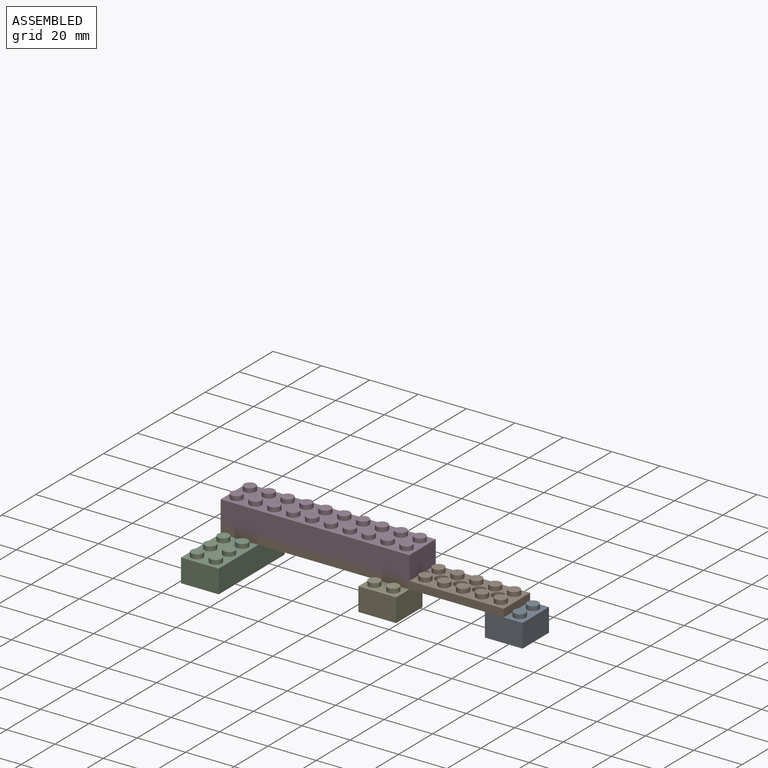
[diagram: assembled view]
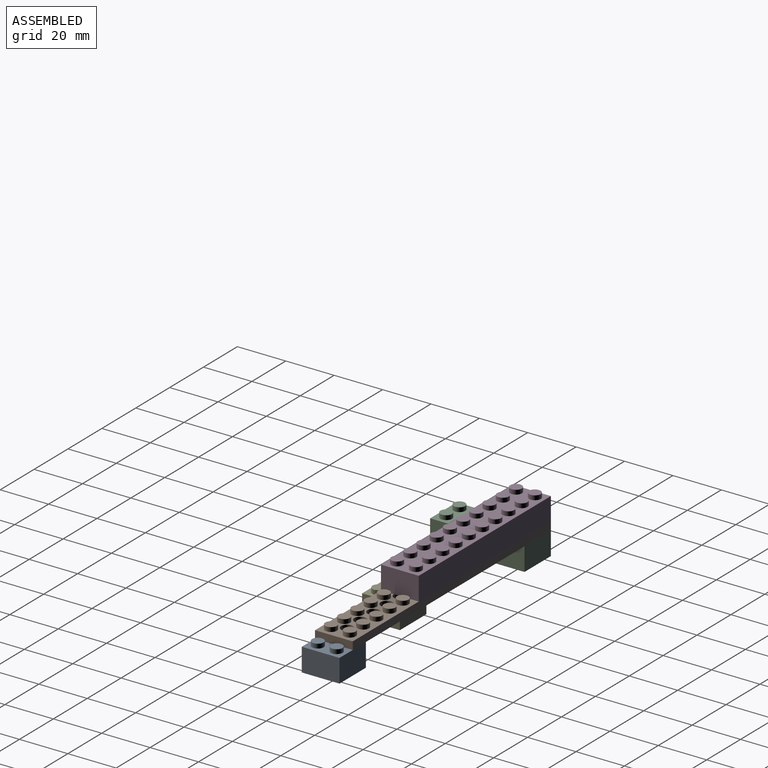
[diagram: assembled view, second angle]
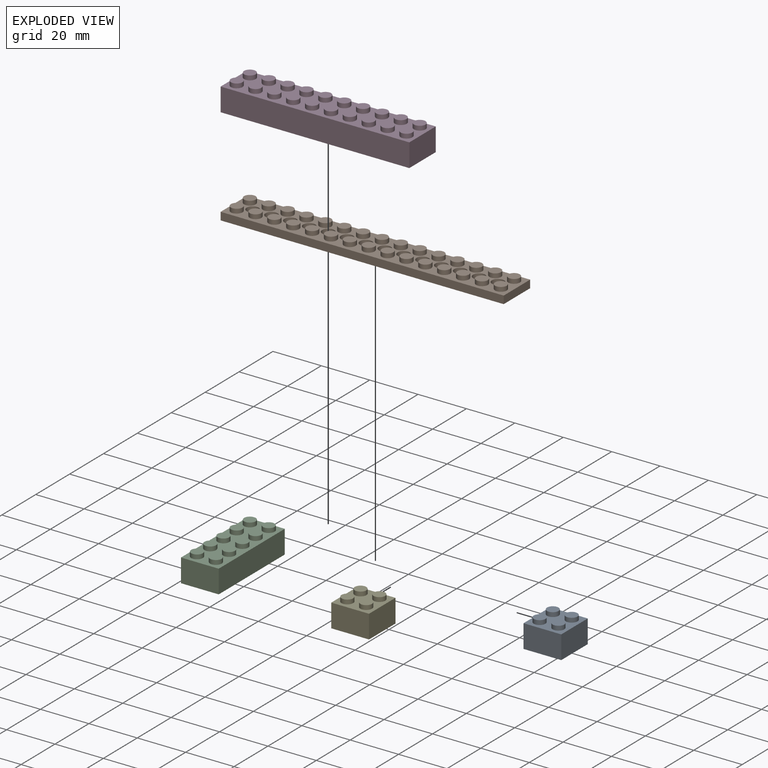
[diagram: exploded view]
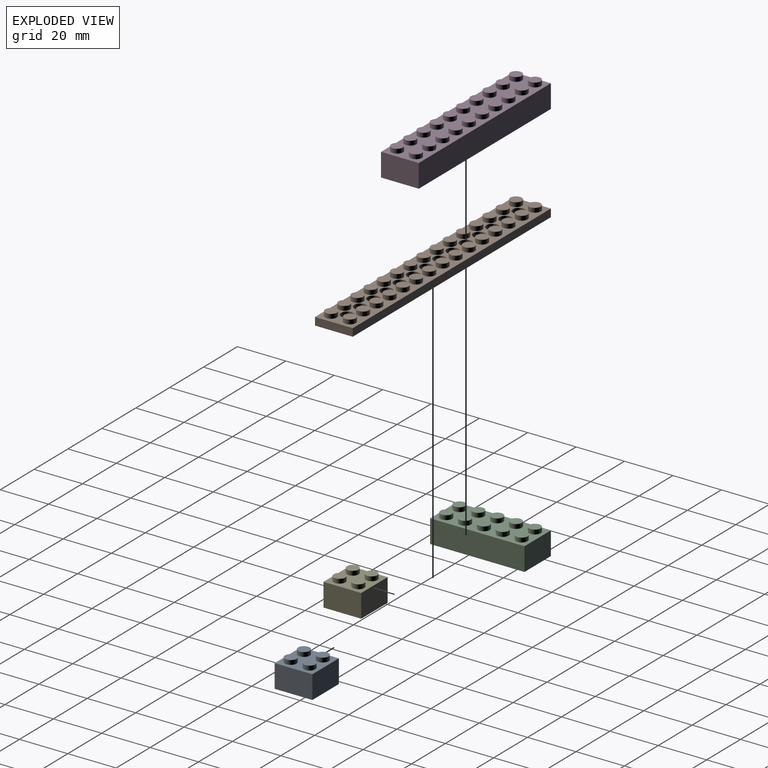
[diagram: exploded view, second angle]
ASSEMBLY  parts=5 mates=4
PART A: 31 faces, bbox 15.6x15.6x11.4 mm
  f0: cylinder r=1.4mm len=2.8mm, axis (0,0,1), area 7.9mm2, adj f14,f24
  f1: cylinder r=1.4mm len=2.8mm, axis (0,0,1), area 7.9mm2, adj f14,f21
  f2: cylinder r=1.4mm len=2.8mm, axis (0,0,1), area 7.9mm2, adj f14,f18
  f3: cylinder r=1.4mm len=2.8mm, axis (0,0,1), area 7.9mm2, adj f14,f15
  f4: plane 15.6x15.6mm, normal (0,0,-1), area 79.5mm2, adj f5,f6,f7,f8,f10,f11,f12,f13
  f5: plane 15.6x9.6mm, normal (0,1,0), area 149.8mm2, adj f4,f6,f8,f9
  f6: plane 15.6x9.6mm, normal (-1,0,0), area 149.8mm2, adj f4,f5,f7,f9
  f7: plane 15.6x9.6mm, normal (0,-1,0), area 149.8mm2, adj f4,f6,f8,f9
  f8: plane 15.6x9.6mm, normal (1,0,0), area 149.8mm2, adj f4,f5,f7,f9
  f9: plane 15.6x15.6mm, normal (0,0,1), area 171mm2, adj f5,f6,f7,f8,f16,f19,f22,f25
  f10: plane 12.8x8.2mm, normal (0,-1,0), area 105mm2, adj f4,f11,f13,f14
  f11: plane 12.8x8.2mm, normal (1,0,0), area 105mm2, adj f4,f10,f12,f14
  f12: plane 12.8x8.2mm, normal (0,1,0), area 105mm2, adj f4,f11,f13,f14
  f13: plane 12.8x8.2mm, normal (-1,0,0), area 105mm2, adj f4,f10,f12,f14
  f14: plane 12.8x12.8mm, normal (0,0,-1), area 110.9mm2, adj f0,f1,f2,f3,f10,f11,f12,f13
  f15: plane 2.8x2.8mm, normal (0,0,-1), area 6.2mm2, adj f3
  f16: cylinder r=2.4mm len=4.8mm, axis (0,0,-1), area 27.1mm2, adj f9,f17
  f17: plane 4.8x4.8mm, normal (0,0,1), area 18.1mm2, adj f16
  f18: plane 2.8x2.8mm, normal (0,0,-1), area 6.2mm2, adj f2
  f19: cylinder r=2.4mm len=4.8mm, axis (0,0,-1), area 27.1mm2, adj f9,f20
  f20: plane 4.8x4.8mm, normal (0,0,1), area 18.1mm2, adj f19
  f21: plane 2.8x2.8mm, normal (0,0,-1), area 6.2mm2, adj f1
  f22: cylinder r=2.4mm len=4.8mm, axis (0,0,-1), area 27.1mm2, adj f9,f23
  f23: plane 4.8x4.8mm, normal (0,0,1), area 18.1mm2, adj f22
  f24: plane 2.8x2.8mm, normal (0,0,-1), area 6.2mm2, adj f0
  f25: cylinder r=2.4mm len=4.8mm, axis (0,0,-1), area 27.1mm2, adj f9,f26
  f26: plane 4.8x4.8mm, normal (0,0,1), area 18.1mm2, adj f25
  f27: cylinder r=2.5mm len=8.2mm, axis (0,0,1), area 128.8mm2, adj f29,f30
  f28: cylinder r=3mm len=8.2mm, axis (0,0,1), area 154.6mm2, adj f14,f29
  f29: plane 6x6mm, normal (0,0,-1), area 8.6mm2, adj f27,f28
  f30: plane 5x5mm, normal (0,0,-1), area 19.6mm2, adj f27
PART B: 173 faces, bbox 117x15.6x5 mm
  f0: cylinder r=1.4mm len=2.8mm, axis (0,0,1), area 7.9mm2, adj f40,f128
  f1: cylinder r=1.4mm len=2.8mm, axis (0,0,1), area 7.9mm2, adj f40,f125
  f2: cylinder r=1.4mm len=2.8mm, axis (0,0,1), area 7.9mm2, adj f40,f122
  f3: cylinder r=1.4mm len=2.8mm, axis (0,0,1), area 7.9mm2, adj f40,f119
  f4: cylinder r=1.4mm len=2.8mm, axis (0,0,1), area 7.9mm2, adj f40,f116
  f5: cylinder r=1.4mm len=2.8mm, axis (0,0,1), area 7.9mm2, adj f40,f113
  f6: cylinder r=1.4mm len=2.8mm, axis (0,0,1), area 7.9mm2, adj f40,f110
  f7: cylinder r=1.4mm len=2.8mm, axis (0,0,1), area 7.9mm2, adj f40,f107
  f8: cylinder r=1.4mm len=2.8mm, axis (0,0,1), area 7.9mm2, adj f40,f104
  f9: cylinder r=1.4mm len=2.8mm, axis (0,0,1), area 7.9mm2, adj f40,f101
  f10: cylinder r=1.4mm len=2.8mm, axis (0,0,1), area 7.9mm2, adj f40,f98
  f11: cylinder r=1.4mm len=2.8mm, axis (0,0,1), area 7.9mm2, adj f40,f95
  f12: cylinder r=1.4mm len=2.8mm, axis (0,0,1), area 7.9mm2, adj f40,f92
  f13: cylinder r=1.4mm len=2.8mm, axis (0,0,1), area 7.9mm2, adj f40,f89
  f14: cylinder r=1.4mm len=2.8mm, axis (0,0,1), area 7.9mm2, adj f40,f86
  f15: cylinder r=1.4mm len=2.8mm, axis (0,0,1), area 7.9mm2, adj f40,f83
  f16: cylinder r=1.4mm len=2.8mm, axis (0,0,1), area 7.9mm2, adj f40,f80
  f17: cylinder r=1.4mm len=2.8mm, axis (0,0,1), area 7.9mm2, adj f40,f77
  f18: cylinder r=1.4mm len=2.8mm, axis (0,0,1), area 7.9mm2, adj f40,f74
  f19: cylinder r=1.4mm len=2.8mm, axis (0,0,1), area 7.9mm2, adj f40,f71
  f20: cylinder r=1.4mm len=2.8mm, axis (0,0,1), area 7.9mm2, adj f40,f68
  f21: cylinder r=1.4mm len=2.8mm, axis (0,0,1), area 7.9mm2, adj f40,f65
  f22: cylinder r=1.4mm len=2.8mm, axis (0,0,1), area 7.9mm2, adj f40,f62
  f23: cylinder r=1.4mm len=2.8mm, axis (0,0,1), area 7.9mm2, adj f40,f59
  f24: cylinder r=1.4mm len=2.8mm, axis (0,0,1), area 7.9mm2, adj f40,f56
  f25: cylinder r=1.4mm len=2.8mm, axis (0,0,1), area 7.9mm2, adj f40,f53
  f26: cylinder r=1.4mm len=2.8mm, axis (0,0,1), area 7.9mm2, adj f40,f50
  f27: cylinder r=1.4mm len=2.8mm, axis (0,0,1), area 7.9mm2, adj f40,f47
  f28: cylinder r=1.4mm len=2.8mm, axis (0,0,1), area 7.9mm2, adj f40,f44
  f29: cylinder r=1.4mm len=2.8mm, axis (0,0,1), area 7.9mm2, adj f40,f41
  f30: plane 117x15.6mm, normal (0,0,-1), area 363.4mm2, adj f31,f32,f33,f34,f36,f37,f38,f39
  f31: plane 117x3.2mm, normal (0,1,0), area 374.4mm2, adj f30,f32,f34,f35
  f32: plane 15.6x3.2mm, normal (-1,0,0), area 49.9mm2, adj f30,f31,f33,f35
  f33: plane 117x3.2mm, normal (0,-1,0), area 374.4mm2, adj f30,f32,f34,f35
  f34: plane 15.6x3.2mm, normal (1,0,0), area 49.9mm2, adj f30,f31,f33,f35
  f35: plane 117x15.6mm, normal (0,0,1), area 1007.4mm2, adj f31,f32,f33,f34,f42,f45,f48,f51
  f36: plane 114.2x1.8mm, normal (0,-1,0), area 205.6mm2, adj f30,f37,f39,f40
  f37: plane 12.8x1.8mm, normal (1,0,0), area 23mm2, adj f30,f36,f38,f40
  f38: plane 114.2x1.8mm, normal (0,1,0), area 205.6mm2, adj f30,f37,f39,f40
  f39: plane 12.8x1.8mm, normal (-1,0,0), area 23mm2, adj f30,f36,f38,f40
  f40: plane 114.2x12.8mm, normal (0,0,-1), area 881.2mm2, adj f0,f1,f2,f3,f4,f5,f6,f7
  f41: plane 2.8x2.8mm, normal (0,0,-1), area 6.2mm2, adj f29
  f42: cylinder r=2.4mm len=4.8mm, axis (0,0,-1), area 27.1mm2, adj f35,f43
  f43: plane 4.8x4.8mm, normal (0,0,1), area 18.1mm2, adj f42
  f44: plane 2.8x2.8mm, normal (0,0,-1), area 6.2mm2, adj f28
  f45: cylinder r=2.4mm len=4.8mm, axis (0,0,-1), area 27.1mm2, adj f35,f46
  f46: plane 4.8x4.8mm, normal (0,0,1), area 18.1mm2, adj f45
  f47: plane 2.8x2.8mm, normal (0,0,-1), area 6.2mm2, adj f27
  f48: cylinder r=2.4mm len=4.8mm, axis (0,0,-1), area 27.1mm2, adj f35,f49
  f49: plane 4.8x4.8mm, normal (0,0,1), area 18.1mm2, adj f48
  f50: plane 2.8x2.8mm, normal (0,0,-1), area 6.2mm2, adj f26
  f51: cylinder r=2.4mm len=4.8mm, axis (0,0,-1), area 27.1mm2, adj f35,f52
  f52: plane 4.8x4.8mm, normal (0,0,1), area 18.1mm2, adj f51
  f53: plane 2.8x2.8mm, normal (0,0,-1), area 6.2mm2, adj f25
  f54: cylinder r=2.4mm len=4.8mm, axis (0,0,-1), area 27.1mm2, adj f35,f55
  f55: plane 4.8x4.8mm, normal (0,0,1), area 18.1mm2, adj f54
  f56: plane 2.8x2.8mm, normal (0,0,-1), area 6.2mm2, adj f24
  f57: cylinder r=2.4mm len=4.8mm, axis (0,0,-1), area 27.1mm2, adj f35,f58
  f58: plane 4.8x4.8mm, normal (0,0,1), area 18.1mm2, adj f57
  f59: plane 2.8x2.8mm, normal (0,0,-1), area 6.2mm2, adj f23
  f60: cylinder r=2.4mm len=4.8mm, axis (0,0,-1), area 27.1mm2, adj f35,f61
  f61: plane 4.8x4.8mm, normal (0,0,1), area 18.1mm2, adj f60
  f62: plane 2.8x2.8mm, normal (0,0,-1), area 6.2mm2, adj f22
  f63: cylinder r=2.4mm len=4.8mm, axis (0,0,-1), area 27.1mm2, adj f35,f64
  f64: plane 4.8x4.8mm, normal (0,0,1), area 18.1mm2, adj f63
  f65: plane 2.8x2.8mm, normal (0,0,-1), area 6.2mm2, adj f21
  f66: cylinder r=2.4mm len=4.8mm, axis (0,0,-1), area 27.1mm2, adj f35,f67
  f67: plane 4.8x4.8mm, normal (0,0,1), area 18.1mm2, adj f66
  f68: plane 2.8x2.8mm, normal (0,0,-1), area 6.2mm2, adj f20
  f69: cylinder r=2.4mm len=4.8mm, axis (0,0,-1), area 27.1mm2, adj f35,f70
  f70: plane 4.8x4.8mm, normal (0,0,1), area 18.1mm2, adj f69
  f71: plane 2.8x2.8mm, normal (0,0,-1), area 6.2mm2, adj f19
  f72: cylinder r=2.4mm len=4.8mm, axis (0,0,-1), area 27.1mm2, adj f35,f73
  f73: plane 4.8x4.8mm, normal (0,0,1), area 18.1mm2, adj f72
  f74: plane 2.8x2.8mm, normal (0,0,-1), area 6.2mm2, adj f18
  f75: cylinder r=2.4mm len=4.8mm, axis (0,0,-1), area 27.1mm2, adj f35,f76
  f76: plane 4.8x4.8mm, normal (0,0,1), area 18.1mm2, adj f75
  f77: plane 2.8x2.8mm, normal (0,0,-1), area 6.2mm2, adj f17
  f78: cylinder r=2.4mm len=4.8mm, axis (0,0,-1), area 27.1mm2, adj f35,f79
  f79: plane 4.8x4.8mm, normal (0,0,1), area 18.1mm2, adj f78
  f80: plane 2.8x2.8mm, normal (0,0,-1), area 6.2mm2, adj f16
  f81: cylinder r=2.4mm len=4.8mm, axis (0,0,-1), area 27.1mm2, adj f35,f82
  f82: plane 4.8x4.8mm, normal (0,0,1), area 18.1mm2, adj f81
  f83: plane 2.8x2.8mm, normal (0,0,-1), area 6.2mm2, adj f15
  f84: cylinder r=2.4mm len=4.8mm, axis (0,0,-1), area 27.1mm2, adj f35,f85
  f85: plane 4.8x4.8mm, normal (0,0,1), area 18.1mm2, adj f84
  f86: plane 2.8x2.8mm, normal (0,0,-1), area 6.2mm2, adj f14
  f87: cylinder r=2.4mm len=4.8mm, axis (0,0,-1), area 27.1mm2, adj f35,f88
  f88: plane 4.8x4.8mm, normal (0,0,1), area 18.1mm2, adj f87
  f89: plane 2.8x2.8mm, normal (0,0,-1), area 6.2mm2, adj f13
  f90: cylinder r=2.4mm len=4.8mm, axis (0,0,-1), area 27.1mm2, adj f35,f91
  f91: plane 4.8x4.8mm, normal (0,0,1), area 18.1mm2, adj f90
  f92: plane 2.8x2.8mm, normal (0,0,-1), area 6.2mm2, adj f12
  f93: cylinder r=2.4mm len=4.8mm, axis (0,0,-1), area 27.1mm2, adj f35,f94
  f94: plane 4.8x4.8mm, normal (0,0,1), area 18.1mm2, adj f93
  f95: plane 2.8x2.8mm, normal (0,0,-1), area 6.2mm2, adj f11
  f96: cylinder r=2.4mm len=4.8mm, axis (0,0,-1), area 27.1mm2, adj f35,f97
  f97: plane 4.8x4.8mm, normal (0,0,1), area 18.1mm2, adj f96
  f98: plane 2.8x2.8mm, normal (0,0,-1), area 6.2mm2, adj f10
  f99: cylinder r=2.4mm len=4.8mm, axis (0,0,-1), area 27.1mm2, adj f35,f100
  f100: plane 4.8x4.8mm, normal (0,0,1), area 18.1mm2, adj f99
  f101: plane 2.8x2.8mm, normal (0,0,-1), area 6.2mm2, adj f9
  f102: cylinder r=2.4mm len=4.8mm, axis (0,0,-1), area 27.1mm2, adj f35,f103
  f103: plane 4.8x4.8mm, normal (0,0,1), area 18.1mm2, adj f102
  f104: plane 2.8x2.8mm, normal (0,0,-1), area 6.2mm2, adj f8
  f105: cylinder r=2.4mm len=4.8mm, axis (0,0,-1), area 27.1mm2, adj f35,f106
  f106: plane 4.8x4.8mm, normal (0,0,1), area 18.1mm2, adj f105
  f107: plane 2.8x2.8mm, normal (0,0,-1), area 6.2mm2, adj f7
  f108: cylinder r=2.4mm len=4.8mm, axis (0,0,-1), area 27.1mm2, adj f35,f109
  f109: plane 4.8x4.8mm, normal (0,0,1), area 18.1mm2, adj f108
  f110: plane 2.8x2.8mm, normal (0,0,-1), area 6.2mm2, adj f6
  f111: cylinder r=2.4mm len=4.8mm, axis (0,0,-1), area 27.1mm2, adj f35,f112
  f112: plane 4.8x4.8mm, normal (0,0,1), area 18.1mm2, adj f111
  f113: plane 2.8x2.8mm, normal (0,0,-1), area 6.2mm2, adj f5
  f114: cylinder r=2.4mm len=4.8mm, axis (0,0,-1), area 27.1mm2, adj f35,f115
  f115: plane 4.8x4.8mm, normal (0,0,1), area 18.1mm2, adj f114
  f116: plane 2.8x2.8mm, normal (0,0,-1), area 6.2mm2, adj f4
  f117: cylinder r=2.4mm len=4.8mm, axis (0,0,-1), area 27.1mm2, adj f35,f118
  f118: plane 4.8x4.8mm, normal (0,0,1), area 18.1mm2, adj f117
  f119: plane 2.8x2.8mm, normal (0,0,-1), area 6.2mm2, adj f3
  f120: cylinder r=2.4mm len=4.8mm, axis (0,0,-1), area 27.1mm2, adj f35,f121
  f121: plane 4.8x4.8mm, normal (0,0,1), area 18.1mm2, adj f120
  f122: plane 2.8x2.8mm, normal (0,0,-1), area 6.2mm2, adj f2
  f123: cylinder r=2.4mm len=4.8mm, axis (0,0,-1), area 27.1mm2, adj f35,f124
  f124: plane 4.8x4.8mm, normal (0,0,1), area 18.1mm2, adj f123
  f125: plane 2.8x2.8mm, normal (0,0,-1), area 6.2mm2, adj f1
  f126: cylinder r=2.4mm len=4.8mm, axis (0,0,-1), area 27.1mm2, adj f35,f127
  f127: plane 4.8x4.8mm, normal (0,0,1), area 18.1mm2, adj f126
  f128: plane 2.8x2.8mm, normal (0,0,-1), area 6.2mm2, adj f0
  f129: cylinder r=2.4mm len=4.8mm, axis (0,0,-1), area 27.1mm2, adj f35,f130
  f130: plane 4.8x4.8mm, normal (0,0,1), area 18.1mm2, adj f129
  f131: cylinder r=2.5mm len=5mm, axis (0,0,1), area 50.3mm2, adj f35,f133
  f132: cylinder r=3mm len=6mm, axis (0,0,1), area 33.9mm2, adj f40,f133
  f133: plane 6x6mm, normal (0,0,-1), area 8.6mm2, adj f131,f132
  f134: cylinder r=2.5mm len=5mm, axis (0,0,1), area 50.3mm2, adj f35,f136
  f135: cylinder r=3mm len=6mm, axis (0,0,1), area 33.9mm2, adj f40,f136
  f136: plane 6x6mm, normal (0,0,-1), area 8.6mm2, adj f134,f135
  f137: cylinder r=2.5mm len=5mm, axis (0,0,1), area 50.3mm2, adj f35,f139
  f138: cylinder r=3mm len=6mm, axis (0,0,1), area 33.9mm2, adj f40,f139
  f139: plane 6x6mm, normal (0,0,-1), area 8.6mm2, adj f137,f138
  f140: cylinder r=2.5mm len=5mm, axis (0,0,1), area 50.3mm2, adj f35,f142
  f141: cylinder r=3mm len=6mm, axis (0,0,1), area 33.9mm2, adj f40,f142
  f142: plane 6x6mm, normal (0,0,-1), area 8.6mm2, adj f140,f141
  f143: cylinder r=2.5mm len=5mm, axis (0,0,1), area 50.3mm2, adj f35,f145
  f144: cylinder r=3mm len=6mm, axis (0,0,1), area 33.9mm2, adj f40,f145
  f145: plane 6x6mm, normal (0,0,-1), area 8.6mm2, adj f143,f144
  f146: cylinder r=2.5mm len=5mm, axis (0,0,1), area 50.3mm2, adj f35,f148
  f147: cylinder r=3mm len=6mm, axis (0,0,1), area 33.9mm2, adj f40,f148
  f148: plane 6x6mm, normal (0,0,-1), area 8.6mm2, adj f146,f147
  f149: cylinder r=2.5mm len=5mm, axis (0,0,1), area 50.3mm2, adj f35,f151
  f150: cylinder r=3mm len=6mm, axis (0,0,1), area 33.9mm2, adj f40,f151
  f151: plane 6x6mm, normal (0,0,-1), area 8.6mm2, adj f149,f150
  f152: cylinder r=2.5mm len=5mm, axis (0,0,1), area 50.3mm2, adj f35,f154
  f153: cylinder r=3mm len=6mm, axis (0,0,1), area 33.9mm2, adj f40,f154
  f154: plane 6x6mm, normal (0,0,-1), area 8.6mm2, adj f152,f153
  f155: cylinder r=2.5mm len=5mm, axis (0,0,1), area 50.3mm2, adj f35,f157
  f156: cylinder r=3mm len=6mm, axis (0,0,1), area 33.9mm2, adj f40,f157
  f157: plane 6x6mm, normal (0,0,-1), area 8.6mm2, adj f155,f156
  f158: cylinder r=2.5mm len=5mm, axis (0,0,1), area 50.3mm2, adj f35,f160
  f159: cylinder r=3mm len=6mm, axis (0,0,1), area 33.9mm2, adj f40,f160
  f160: plane 6x6mm, normal (0,0,-1), area 8.6mm2, adj f158,f159
  f161: cylinder r=2.5mm len=5mm, axis (0,0,1), area 50.3mm2, adj f35,f163
  f162: cylinder r=3mm len=6mm, axis (0,0,1), area 33.9mm2, adj f40,f163
  f163: plane 6x6mm, normal (0,0,-1), area 8.6mm2, adj f161,f162
  f164: cylinder r=2.5mm len=5mm, axis (0,0,1), area 50.3mm2, adj f35,f166
  f165: cylinder r=3mm len=6mm, axis (0,0,1), area 33.9mm2, adj f40,f166
  f166: plane 6x6mm, normal (0,0,-1), area 8.6mm2, adj f164,f165
  f167: cylinder r=2.5mm len=5mm, axis (0,0,1), area 50.3mm2, adj f35,f169
  f168: cylinder r=3mm len=6mm, axis (0,0,1), area 33.9mm2, adj f40,f169
  f169: plane 6x6mm, normal (0,0,-1), area 8.6mm2, adj f167,f168
  f170: cylinder r=2.5mm len=5mm, axis (0,0,1), area 50.3mm2, adj f35,f172
  f171: cylinder r=3mm len=6mm, axis (0,0,1), area 33.9mm2, adj f40,f172
  f172: plane 6x6mm, normal (0,0,-1), area 8.6mm2, adj f170,f171
PART C: 67 faces, bbox 15.6x39x11.4 mm
  f0: cylinder r=1.4mm len=2.8mm, axis (0,0,1), area 7.9mm2, adj f20,f48
  f1: cylinder r=1.4mm len=2.8mm, axis (0,0,1), area 7.9mm2, adj f20,f45
  f2: cylinder r=1.4mm len=2.8mm, axis (0,0,1), area 7.9mm2, adj f20,f42
  f3: cylinder r=1.4mm len=2.8mm, axis (0,0,1), area 7.9mm2, adj f20,f39
  f4: cylinder r=1.4mm len=2.8mm, axis (0,0,1), area 7.9mm2, adj f20,f36
  f5: cylinder r=1.4mm len=2.8mm, axis (0,0,1), area 7.9mm2, adj f20,f33
  f6: cylinder r=1.4mm len=2.8mm, axis (0,0,1), area 7.9mm2, adj f20,f30
  f7: cylinder r=1.4mm len=2.8mm, axis (0,0,1), area 7.9mm2, adj f20,f27
  f8: cylinder r=1.4mm len=2.8mm, axis (0,0,1), area 7.9mm2, adj f20,f24
  f9: cylinder r=1.4mm len=2.8mm, axis (0,0,1), area 7.9mm2, adj f20,f21
  f10: plane 39x15.6mm, normal (0,0,-1), area 145mm2, adj f11,f12,f13,f14,f16,f17,f18,f19
  f11: plane 15.6x9.6mm, normal (0,1,0), area 149.8mm2, adj f10,f12,f14,f15
  f12: plane 39x9.6mm, normal (-1,0,0), area 374.4mm2, adj f10,f11,f13,f15
  f13: plane 15.6x9.6mm, normal (0,-1,0), area 149.8mm2, adj f10,f12,f14,f15
  f14: plane 39x9.6mm, normal (1,0,0), area 374.4mm2, adj f10,f11,f13,f15
  f15: plane 39x15.6mm, normal (0,0,1), area 427.4mm2, adj f11,f12,f13,f14,f22,f25,f28,f31
  f16: plane 12.8x8.2mm, normal (0,-1,0), area 105mm2, adj f10,f17,f19,f20
  f17: plane 36.2x8.2mm, normal (1,0,0), area 296.8mm2, adj f10,f16,f18,f20
  f18: plane 12.8x8.2mm, normal (0,1,0), area 105mm2, adj f10,f17,f19,f20
  f19: plane 36.2x8.2mm, normal (-1,0,0), area 296.8mm2, adj f10,f16,f18,f20
  f20: plane 36.2x12.8mm, normal (0,0,-1), area 288.7mm2, adj f0,f1,f2,f3,f4,f5,f6,f7
  f21: plane 2.8x2.8mm, normal (0,0,-1), area 6.2mm2, adj f9
  f22: cylinder r=2.4mm len=4.8mm, axis (0,0,-1), area 27.1mm2, adj f15,f23
  f23: plane 4.8x4.8mm, normal (0,0,1), area 18.1mm2, adj f22
  f24: plane 2.8x2.8mm, normal (0,0,-1), area 6.2mm2, adj f8
  f25: cylinder r=2.4mm len=4.8mm, axis (0,0,-1), area 27.1mm2, adj f15,f26
  f26: plane 4.8x4.8mm, normal (0,0,1), area 18.1mm2, adj f25
  f27: plane 2.8x2.8mm, normal (0,0,-1), area 6.2mm2, adj f7
  f28: cylinder r=2.4mm len=4.8mm, axis (0,0,-1), area 27.1mm2, adj f15,f29
  f29: plane 4.8x4.8mm, normal (0,0,1), area 18.1mm2, adj f28
  f30: plane 2.8x2.8mm, normal (0,0,-1), area 6.2mm2, adj f6
  f31: cylinder r=2.4mm len=4.8mm, axis (0,0,-1), area 27.1mm2, adj f15,f32
  f32: plane 4.8x4.8mm, normal (0,0,1), area 18.1mm2, adj f31
  f33: plane 2.8x2.8mm, normal (0,0,-1), area 6.2mm2, adj f5
  f34: cylinder r=2.4mm len=4.8mm, axis (0,0,-1), area 27.1mm2, adj f15,f35
  f35: plane 4.8x4.8mm, normal (0,0,1), area 18.1mm2, adj f34
  f36: plane 2.8x2.8mm, normal (0,0,-1), area 6.2mm2, adj f4
  f37: cylinder r=2.4mm len=4.8mm, axis (0,0,-1), area 27.1mm2, adj f15,f38
  f38: plane 4.8x4.8mm, normal (0,0,1), area 18.1mm2, adj f37
  f39: plane 2.8x2.8mm, normal (0,0,-1), area 6.2mm2, adj f3
  f40: cylinder r=2.4mm len=4.8mm, axis (0,0,-1), area 27.1mm2, adj f15,f41
  f41: plane 4.8x4.8mm, normal (0,0,1), area 18.1mm2, adj f40
  f42: plane 2.8x2.8mm, normal (0,0,-1), area 6.2mm2, adj f2
  f43: cylinder r=2.4mm len=4.8mm, axis (0,0,-1), area 27.1mm2, adj f15,f44
  f44: plane 4.8x4.8mm, normal (0,0,1), area 18.1mm2, adj f43
  f45: plane 2.8x2.8mm, normal (0,0,-1), area 6.2mm2, adj f1
  f46: cylinder r=2.4mm len=4.8mm, axis (0,0,-1), area 27.1mm2, adj f15,f47
  f47: plane 4.8x4.8mm, normal (0,0,1), area 18.1mm2, adj f46
  f48: plane 2.8x2.8mm, normal (0,0,-1), area 6.2mm2, adj f0
  f49: cylinder r=2.4mm len=4.8mm, axis (0,0,-1), area 27.1mm2, adj f15,f50
  f50: plane 4.8x4.8mm, normal (0,0,1), area 18.1mm2, adj f49
  f51: cylinder r=2.5mm len=8.2mm, axis (0,0,1), area 128.8mm2, adj f53,f54
  f52: cylinder r=3mm len=8.2mm, axis (0,0,1), area 154.6mm2, adj f20,f53
  f53: plane 6x6mm, normal (0,0,-1), area 8.6mm2, adj f51,f52
  f54: plane 5x5mm, normal (0,0,-1), area 19.6mm2, adj f51
  f55: cylinder r=2.5mm len=8.2mm, axis (0,0,1), area 128.8mm2, adj f57,f58
  f56: cylinder r=3mm len=8.2mm, axis (0,0,1), area 154.6mm2, adj f20,f57
  f57: plane 6x6mm, normal (0,0,-1), area 8.6mm2, adj f55,f56
  f58: plane 5x5mm, normal (0,0,-1), area 19.6mm2, adj f55
  f59: cylinder r=2.5mm len=8.2mm, axis (0,0,1), area 128.8mm2, adj f61,f62
  f60: cylinder r=3mm len=8.2mm, axis (0,0,1), area 154.6mm2, adj f20,f61
  f61: plane 6x6mm, normal (0,0,-1), area 8.6mm2, adj f59,f60
  f62: plane 5x5mm, normal (0,0,-1), area 19.6mm2, adj f59
  f63: cylinder r=2.5mm len=8.2mm, axis (0,0,1), area 128.8mm2, adj f65,f66
  f64: cylinder r=3mm len=8.2mm, axis (0,0,1), area 154.6mm2, adj f20,f65
  f65: plane 6x6mm, normal (0,0,-1), area 8.6mm2, adj f63,f64
  f66: plane 5x5mm, normal (0,0,-1), area 19.6mm2, adj f63
PART D: 127 faces, bbox 78x15.6x11.4 mm
  f0: cylinder r=1.4mm len=2.8mm, axis (0,0,1), area 7.9mm2, adj f30,f88
  f1: cylinder r=1.4mm len=2.8mm, axis (0,0,1), area 7.9mm2, adj f30,f85
  f2: cylinder r=1.4mm len=2.8mm, axis (0,0,1), area 7.9mm2, adj f30,f82
  f3: cylinder r=1.4mm len=2.8mm, axis (0,0,1), area 7.9mm2, adj f30,f79
  f4: cylinder r=1.4mm len=2.8mm, axis (0,0,1), area 7.9mm2, adj f30,f76
  f5: cylinder r=1.4mm len=2.8mm, axis (0,0,1), area 7.9mm2, adj f30,f73
  f6: cylinder r=1.4mm len=2.8mm, axis (0,0,1), area 7.9mm2, adj f30,f70
  f7: cylinder r=1.4mm len=2.8mm, axis (0,0,1), area 7.9mm2, adj f30,f67
  f8: cylinder r=1.4mm len=2.8mm, axis (0,0,1), area 7.9mm2, adj f30,f64
  f9: cylinder r=1.4mm len=2.8mm, axis (0,0,1), area 7.9mm2, adj f30,f61
  f10: cylinder r=1.4mm len=2.8mm, axis (0,0,1), area 7.9mm2, adj f30,f58
  f11: cylinder r=1.4mm len=2.8mm, axis (0,0,1), area 7.9mm2, adj f30,f55
  f12: cylinder r=1.4mm len=2.8mm, axis (0,0,1), area 7.9mm2, adj f30,f52
  f13: cylinder r=1.4mm len=2.8mm, axis (0,0,1), area 7.9mm2, adj f30,f49
  f14: cylinder r=1.4mm len=2.8mm, axis (0,0,1), area 7.9mm2, adj f30,f46
  f15: cylinder r=1.4mm len=2.8mm, axis (0,0,1), area 7.9mm2, adj f30,f43
  f16: cylinder r=1.4mm len=2.8mm, axis (0,0,1), area 7.9mm2, adj f30,f40
  f17: cylinder r=1.4mm len=2.8mm, axis (0,0,1), area 7.9mm2, adj f30,f37
  f18: cylinder r=1.4mm len=2.8mm, axis (0,0,1), area 7.9mm2, adj f30,f34
  f19: cylinder r=1.4mm len=2.8mm, axis (0,0,1), area 7.9mm2, adj f30,f31
  f20: plane 78x15.6mm, normal (0,0,-1), area 254.2mm2, adj f21,f22,f23,f24,f26,f27,f28,f29
  f21: plane 78x9.6mm, normal (0,1,0), area 748.8mm2, adj f20,f22,f24,f25
  f22: plane 15.6x9.6mm, normal (-1,0,0), area 149.8mm2, adj f20,f21,f23,f25
  f23: plane 78x9.6mm, normal (0,-1,0), area 748.8mm2, adj f20,f22,f24,f25
  f24: plane 15.6x9.6mm, normal (1,0,0), area 149.8mm2, adj f20,f21,f23,f25
  f25: plane 78x15.6mm, normal (0,0,1), area 854.9mm2, adj f21,f22,f23,f24,f32,f35,f38,f41
  f26: plane 75.2x8.2mm, normal (0,-1,0), area 616.6mm2, adj f20,f27,f29,f30
  f27: plane 12.8x8.2mm, normal (1,0,0), area 105mm2, adj f20,f26,f28,f30
  f28: plane 75.2x8.2mm, normal (0,1,0), area 616.6mm2, adj f20,f27,f29,f30
  f29: plane 12.8x8.2mm, normal (-1,0,0), area 105mm2, adj f20,f26,f28,f30
  f30: plane 75.2x12.8mm, normal (0,0,-1), area 584.9mm2, adj f0,f1,f2,f3,f4,f5,f6,f7
  f31: plane 2.8x2.8mm, normal (0,0,-1), area 6.2mm2, adj f19
  f32: cylinder r=2.4mm len=4.8mm, axis (0,0,-1), area 27.1mm2, adj f25,f33
  f33: plane 4.8x4.8mm, normal (0,0,1), area 18.1mm2, adj f32
  f34: plane 2.8x2.8mm, normal (0,0,-1), area 6.2mm2, adj f18
  f35: cylinder r=2.4mm len=4.8mm, axis (0,0,-1), area 27.1mm2, adj f25,f36
  f36: plane 4.8x4.8mm, normal (0,0,1), area 18.1mm2, adj f35
  f37: plane 2.8x2.8mm, normal (0,0,-1), area 6.2mm2, adj f17
  f38: cylinder r=2.4mm len=4.8mm, axis (0,0,-1), area 27.1mm2, adj f25,f39
  f39: plane 4.8x4.8mm, normal (0,0,1), area 18.1mm2, adj f38
  f40: plane 2.8x2.8mm, normal (0,0,-1), area 6.2mm2, adj f16
  f41: cylinder r=2.4mm len=4.8mm, axis (0,0,-1), area 27.1mm2, adj f25,f42
  f42: plane 4.8x4.8mm, normal (0,0,1), area 18.1mm2, adj f41
  f43: plane 2.8x2.8mm, normal (0,0,-1), area 6.2mm2, adj f15
  f44: cylinder r=2.4mm len=4.8mm, axis (0,0,-1), area 27.1mm2, adj f25,f45
  f45: plane 4.8x4.8mm, normal (0,0,1), area 18.1mm2, adj f44
  f46: plane 2.8x2.8mm, normal (0,0,-1), area 6.2mm2, adj f14
  f47: cylinder r=2.4mm len=4.8mm, axis (0,0,-1), area 27.1mm2, adj f25,f48
  f48: plane 4.8x4.8mm, normal (0,0,1), area 18.1mm2, adj f47
  f49: plane 2.8x2.8mm, normal (0,0,-1), area 6.2mm2, adj f13
  f50: cylinder r=2.4mm len=4.8mm, axis (0,0,-1), area 27.1mm2, adj f25,f51
  f51: plane 4.8x4.8mm, normal (0,0,1), area 18.1mm2, adj f50
  f52: plane 2.8x2.8mm, normal (0,0,-1), area 6.2mm2, adj f12
  f53: cylinder r=2.4mm len=4.8mm, axis (0,0,-1), area 27.1mm2, adj f25,f54
  f54: plane 4.8x4.8mm, normal (0,0,1), area 18.1mm2, adj f53
  f55: plane 2.8x2.8mm, normal (0,0,-1), area 6.2mm2, adj f11
  f56: cylinder r=2.4mm len=4.8mm, axis (0,0,-1), area 27.1mm2, adj f25,f57
  f57: plane 4.8x4.8mm, normal (0,0,1), area 18.1mm2, adj f56
  f58: plane 2.8x2.8mm, normal (0,0,-1), area 6.2mm2, adj f10
  f59: cylinder r=2.4mm len=4.8mm, axis (0,0,-1), area 27.1mm2, adj f25,f60
  f60: plane 4.8x4.8mm, normal (0,0,1), area 18.1mm2, adj f59
  f61: plane 2.8x2.8mm, normal (0,0,-1), area 6.2mm2, adj f9
  f62: cylinder r=2.4mm len=4.8mm, axis (0,0,-1), area 27.1mm2, adj f25,f63
  f63: plane 4.8x4.8mm, normal (0,0,1), area 18.1mm2, adj f62
  f64: plane 2.8x2.8mm, normal (0,0,-1), area 6.2mm2, adj f8
  f65: cylinder r=2.4mm len=4.8mm, axis (0,0,-1), area 27.1mm2, adj f25,f66
  f66: plane 4.8x4.8mm, normal (0,0,1), area 18.1mm2, adj f65
  f67: plane 2.8x2.8mm, normal (0,0,-1), area 6.2mm2, adj f7
  f68: cylinder r=2.4mm len=4.8mm, axis (0,0,-1), area 27.1mm2, adj f25,f69
  f69: plane 4.8x4.8mm, normal (0,0,1), area 18.1mm2, adj f68
  f70: plane 2.8x2.8mm, normal (0,0,-1), area 6.2mm2, adj f6
  f71: cylinder r=2.4mm len=4.8mm, axis (0,0,-1), area 27.1mm2, adj f25,f72
  f72: plane 4.8x4.8mm, normal (0,0,1), area 18.1mm2, adj f71
  f73: plane 2.8x2.8mm, normal (0,0,-1), area 6.2mm2, adj f5
  f74: cylinder r=2.4mm len=4.8mm, axis (0,0,-1), area 27.1mm2, adj f25,f75
  f75: plane 4.8x4.8mm, normal (0,0,1), area 18.1mm2, adj f74
  f76: plane 2.8x2.8mm, normal (0,0,-1), area 6.2mm2, adj f4
  f77: cylinder r=2.4mm len=4.8mm, axis (0,0,-1), area 27.1mm2, adj f25,f78
  f78: plane 4.8x4.8mm, normal (0,0,1), area 18.1mm2, adj f77
  f79: plane 2.8x2.8mm, normal (0,0,-1), area 6.2mm2, adj f3
  f80: cylinder r=2.4mm len=4.8mm, axis (0,0,-1), area 27.1mm2, adj f25,f81
  f81: plane 4.8x4.8mm, normal (0,0,1), area 18.1mm2, adj f80
  f82: plane 2.8x2.8mm, normal (0,0,-1), area 6.2mm2, adj f2
  f83: cylinder r=2.4mm len=4.8mm, axis (0,0,-1), area 27.1mm2, adj f25,f84
  f84: plane 4.8x4.8mm, normal (0,0,1), area 18.1mm2, adj f83
  f85: plane 2.8x2.8mm, normal (0,0,-1), area 6.2mm2, adj f1
  f86: cylinder r=2.4mm len=4.8mm, axis (0,0,-1), area 27.1mm2, adj f25,f87
  f87: plane 4.8x4.8mm, normal (0,0,1), area 18.1mm2, adj f86
  f88: plane 2.8x2.8mm, normal (0,0,-1), area 6.2mm2, adj f0
  f89: cylinder r=2.4mm len=4.8mm, axis (0,0,-1), area 27.1mm2, adj f25,f90
  f90: plane 4.8x4.8mm, normal (0,0,1), area 18.1mm2, adj f89
  f91: cylinder r=2.5mm len=8.2mm, axis (0,0,1), area 128.8mm2, adj f93,f94
  f92: cylinder r=3mm len=8.2mm, axis (0,0,1), area 154.6mm2, adj f30,f93
  f93: plane 6x6mm, normal (0,0,-1), area 8.6mm2, adj f91,f92
  f94: plane 5x5mm, normal (0,0,-1), area 19.6mm2, adj f91
  f95: cylinder r=2.5mm len=8.2mm, axis (0,0,1), area 128.8mm2, adj f97,f98
  f96: cylinder r=3mm len=8.2mm, axis (0,0,1), area 154.6mm2, adj f30,f97
  f97: plane 6x6mm, normal (0,0,-1), area 8.6mm2, adj f95,f96
  f98: plane 5x5mm, normal (0,0,-1), area 19.6mm2, adj f95
  f99: cylinder r=2.5mm len=8.2mm, axis (0,0,1), area 128.8mm2, adj f101,f102
  f100: cylinder r=3mm len=8.2mm, axis (0,0,1), area 154.6mm2, adj f30,f101
  f101: plane 6x6mm, normal (0,0,-1), area 8.6mm2, adj f99,f100
  f102: plane 5x5mm, normal (0,0,-1), area 19.6mm2, adj f99
  f103: cylinder r=2.5mm len=8.2mm, axis (0,0,1), area 128.8mm2, adj f105,f106
  f104: cylinder r=3mm len=8.2mm, axis (0,0,1), area 154.6mm2, adj f30,f105
  f105: plane 6x6mm, normal (0,0,-1), area 8.6mm2, adj f103,f104
  f106: plane 5x5mm, normal (0,0,-1), area 19.6mm2, adj f103
  f107: cylinder r=2.5mm len=8.2mm, axis (0,0,1), area 128.8mm2, adj f109,f110
  f108: cylinder r=3mm len=8.2mm, axis (0,0,1), area 154.6mm2, adj f30,f109
  f109: plane 6x6mm, normal (0,0,-1), area 8.6mm2, adj f107,f108
  f110: plane 5x5mm, normal (0,0,-1), area 19.6mm2, adj f107
  f111: cylinder r=2.5mm len=8.2mm, axis (0,0,1), area 128.8mm2, adj f113,f114
  f112: cylinder r=3mm len=8.2mm, axis (0,0,1), area 154.6mm2, adj f30,f113
  f113: plane 6x6mm, normal (0,0,-1), area 8.6mm2, adj f111,f112
  f114: plane 5x5mm, normal (0,0,-1), area 19.6mm2, adj f111
  f115: cylinder r=2.5mm len=8.2mm, axis (0,0,1), area 128.8mm2, adj f117,f118
  f116: cylinder r=3mm len=8.2mm, axis (0,0,1), area 154.6mm2, adj f30,f117
  f117: plane 6x6mm, normal (0,0,-1), area 8.6mm2, adj f115,f116
  f118: plane 5x5mm, normal (0,0,-1), area 19.6mm2, adj f115
  f119: cylinder r=2.5mm len=8.2mm, axis (0,0,1), area 128.8mm2, adj f121,f122
  f120: cylinder r=3mm len=8.2mm, axis (0,0,1), area 154.6mm2, adj f30,f121
  f121: plane 6x6mm, normal (0,0,-1), area 8.6mm2, adj f119,f120
  f122: plane 5x5mm, normal (0,0,-1), area 19.6mm2, adj f119
  f123: cylinder r=2.5mm len=8.2mm, axis (0,0,1), area 128.8mm2, adj f125,f126
  f124: cylinder r=3mm len=8.2mm, axis (0,0,1), area 154.6mm2, adj f30,f125
  f125: plane 6x6mm, normal (0,0,-1), area 8.6mm2, adj f123,f124
  f126: plane 5x5mm, normal (0,0,-1), area 19.6mm2, adj f123
PART E: 31 faces, bbox 15.6x15.6x11.4 mm
  f0: cylinder r=1.4mm len=2.8mm, axis (0,0,1), area 7.9mm2, adj f14,f24
  f1: cylinder r=1.4mm len=2.8mm, axis (0,0,1), area 7.9mm2, adj f14,f21
  f2: cylinder r=1.4mm len=2.8mm, axis (0,0,1), area 7.9mm2, adj f14,f18
  f3: cylinder r=1.4mm len=2.8mm, axis (0,0,1), area 7.9mm2, adj f14,f15
  f4: plane 15.6x15.6mm, normal (0,0,-1), area 79.5mm2, adj f5,f6,f7,f8,f10,f11,f12,f13
  f5: plane 15.6x9.6mm, normal (0,1,0), area 149.8mm2, adj f4,f6,f8,f9
  f6: plane 15.6x9.6mm, normal (-1,0,0), area 149.8mm2, adj f4,f5,f7,f9
  f7: plane 15.6x9.6mm, normal (0,-1,0), area 149.8mm2, adj f4,f6,f8,f9
  f8: plane 15.6x9.6mm, normal (1,0,0), area 149.8mm2, adj f4,f5,f7,f9
  f9: plane 15.6x15.6mm, normal (0,0,1), area 171mm2, adj f5,f6,f7,f8,f16,f19,f22,f25
  f10: plane 12.8x8.2mm, normal (0,-1,0), area 105mm2, adj f4,f11,f13,f14
  f11: plane 12.8x8.2mm, normal (1,0,0), area 105mm2, adj f4,f10,f12,f14
  f12: plane 12.8x8.2mm, normal (0,1,0), area 105mm2, adj f4,f11,f13,f14
  f13: plane 12.8x8.2mm, normal (-1,0,0), area 105mm2, adj f4,f10,f12,f14
  f14: plane 12.8x12.8mm, normal (0,0,-1), area 110.9mm2, adj f0,f1,f2,f3,f10,f11,f12,f13
  f15: plane 2.8x2.8mm, normal (0,0,-1), area 6.2mm2, adj f3
  f16: cylinder r=2.4mm len=4.8mm, axis (0,0,-1), area 27.1mm2, adj f9,f17
  f17: plane 4.8x4.8mm, normal (0,0,1), area 18.1mm2, adj f16
  f18: plane 2.8x2.8mm, normal (0,0,-1), area 6.2mm2, adj f2
  f19: cylinder r=2.4mm len=4.8mm, axis (0,0,-1), area 27.1mm2, adj f9,f20
  f20: plane 4.8x4.8mm, normal (0,0,1), area 18.1mm2, adj f19
  f21: plane 2.8x2.8mm, normal (0,0,-1), area 6.2mm2, adj f1
  f22: cylinder r=2.4mm len=4.8mm, axis (0,0,-1), area 27.1mm2, adj f9,f23
  f23: plane 4.8x4.8mm, normal (0,0,1), area 18.1mm2, adj f22
  f24: plane 2.8x2.8mm, normal (0,0,-1), area 6.2mm2, adj f0
  f25: cylinder r=2.4mm len=4.8mm, axis (0,0,-1), area 27.1mm2, adj f9,f26
  f26: plane 4.8x4.8mm, normal (0,0,1), area 18.1mm2, adj f25
  f27: cylinder r=2.5mm len=8.2mm, axis (0,0,1), area 128.8mm2, adj f29,f30
  f28: cylinder r=3mm len=8.2mm, axis (0,0,1), area 154.6mm2, adj f14,f29
  f29: plane 6x6mm, normal (0,0,-1), area 8.6mm2, adj f27,f28
  f30: plane 5x5mm, normal (0,0,-1), area 19.6mm2, adj f27
PLACE A t=(100.88,58.22,9.93)mm
PLACE B t=(-8.32,8.22,19.53)mm
PLACE C t=(-38.32,34.82,9.93)mm
PLACE D t=(-58.32,58.22,22.73)mm
PLACE E t=(104.08,50.42,9.93)mm
MATE planar C.f5 <-> B.f28  axis (0,0,1) through (-4.42,69.92,21.33)mm
MATE planar D.f91 <-> B.f131  axis (0,0,-1) through (-0.52,66.02,22.73)mm
MATE cylindrical A.f2 <-> B.f0  axis (0,0,1) through (104.78,69.92,21.33)mm
MATE parallel E.f2 <-> B.f13  axis (0,0,1) through (57.98,62.12,21.33)mm
